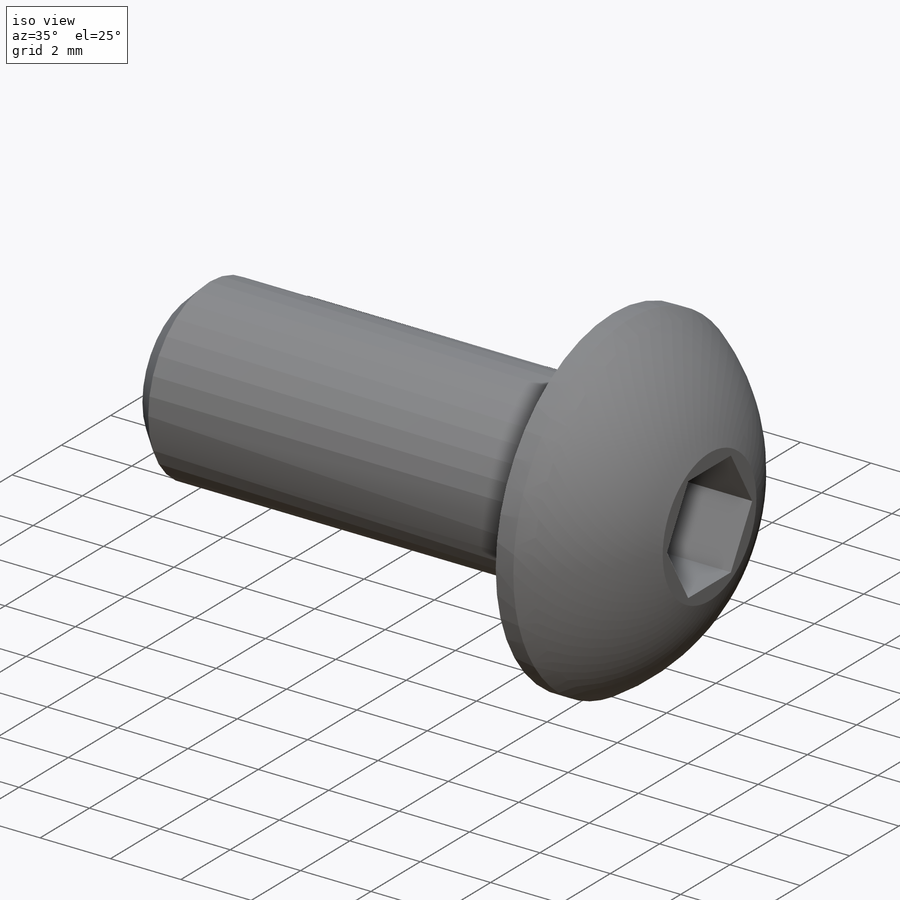
[diagram: iso view]
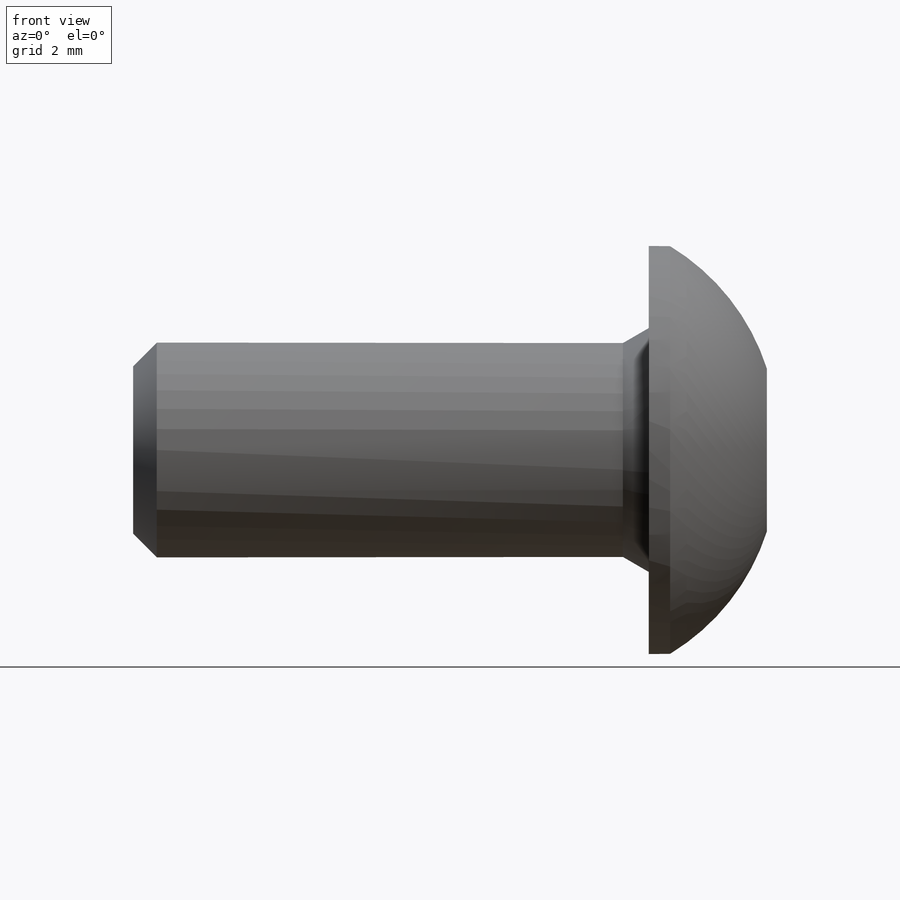
[diagram: front view]
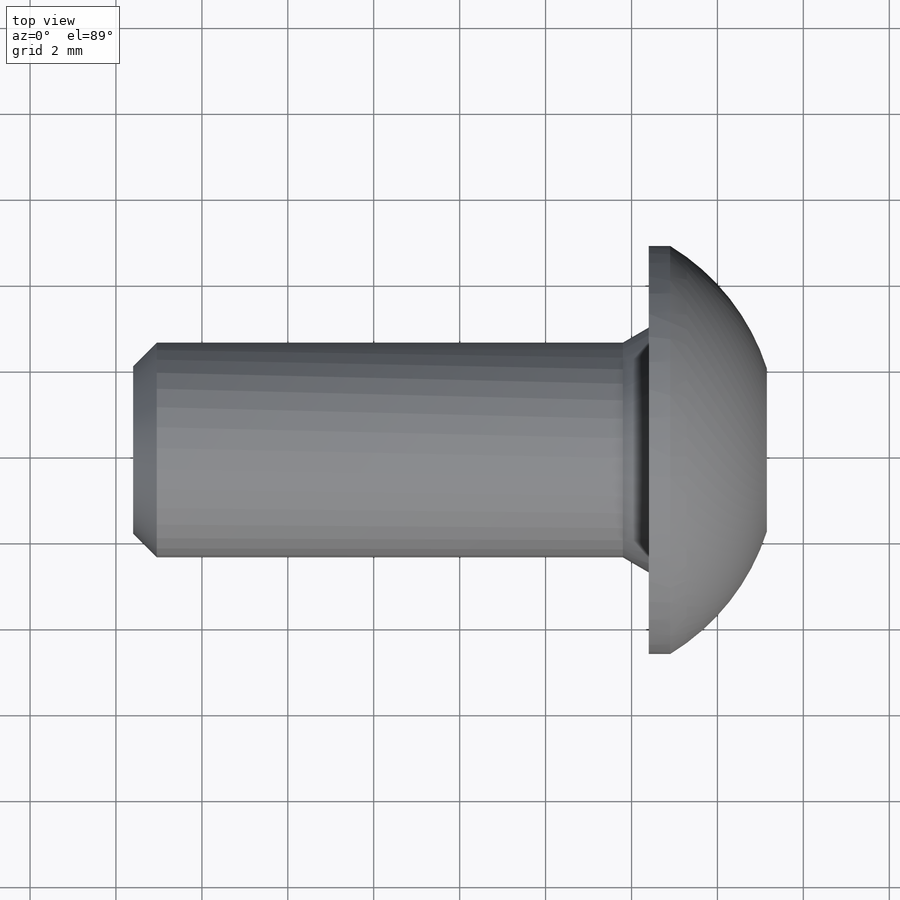
[diagram: top view]
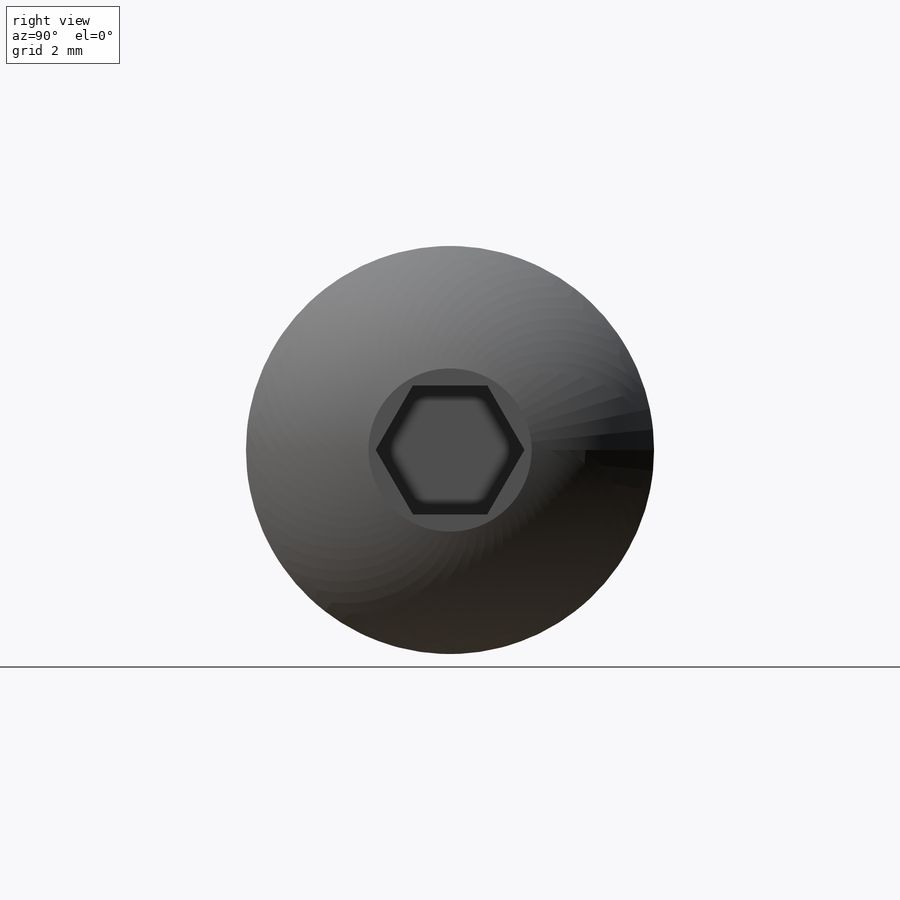
[diagram: right view]
SOLIDWORKS PART (.sldprt)
format: sldprt  version: not decoded by parser v0  size: 151,552 bytes
history: native  units: mm
features: sketch x3, chamfer x2, material x1, plane x1, revolve x1, extrude x1, cut_extrude x1 (+13 scaffold rows collapsed)
feature tree (23):
  scaffold x13  (default folders/planes/origin — collapsed)
  material  "Material <not specified>"
  plane  "Plane1"  Offset=9.9mm
  sketch  "Sketch1"
  revolve  "Revolve1"  Angle=360deg
  sketch  "Sketch2"
  extrude  "Boss-Extrude1"  Depth=12mm
  sketch  "Sketch3"
  cut_extrude  "Cut-Extrude1"  Depth=2.2mm
  chamfer  "Chamfer1"  Distance=0.55mm Angle=45deg
  chamfer  "Chamfer2"  Distance=0.35mm Angle=59.743563deg
decode coverage: 5 of 8 modeling features carry decoded parameters
note: suppression state not decoded; provenance and decode notes live in map.json
